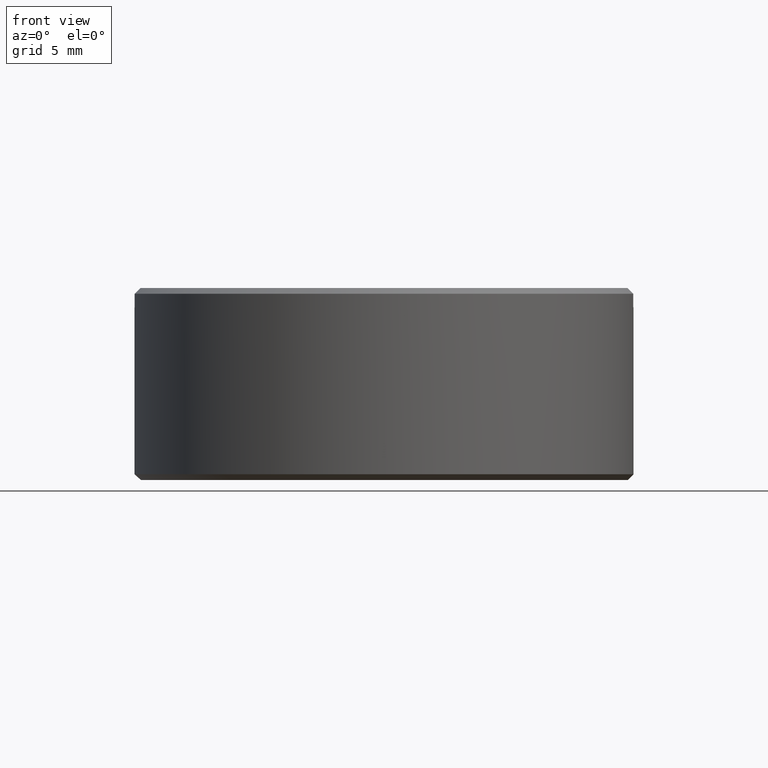
[diagram: clean part render]
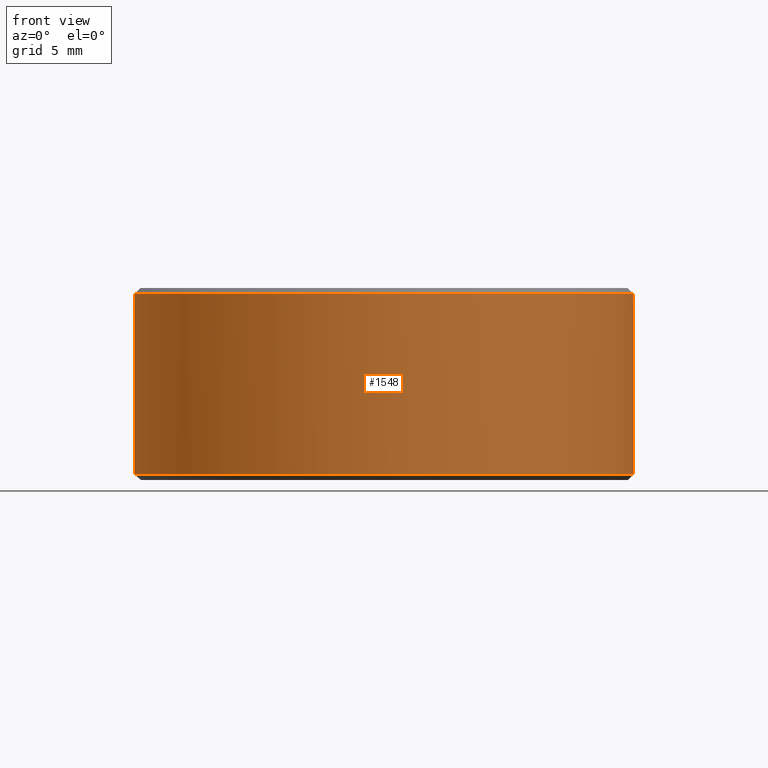
[diagram: same view with one face highlighted and labeled with its STEP entity id]
A machine part, front view. The second image highlights one B-rep face of the part: STEP entity #1548.
In plain terms, the highlighted cylindrical surface (bore or boss wall) has radius 13 mm, axis along (-0, -0, -1).
Its self-contained STEP definition (entity closure, byte-faithful):
#14 = AXIS2_PLACEMENT_3D ( 'NONE', #1216, #521, #1015 ) ;
#28 = DIRECTION ( 'NONE',  ( -1.000000000000000000, 0.000000000000000000, 0.000000000000000000 ) ) ;
#54 = CARTESIAN_POINT ( 'NONE',  ( -12.98836017363239037, -0.5500000000000000444, 4.000000000000000000 ) ) ;
#61 = EDGE_CURVE ( 'NONE', #1201, #1094, #1169, .T. ) ;
#72 = DIRECTION ( 'NONE',  ( -1.000000000000000000, 0.000000000000000000, 0.000000000000000000 ) ) ;
#82 = EDGE_CURVE ( 'NONE', #1471, #1441, #663, .T. ) ;
#117 = EDGE_CURVE ( 'NONE', #890, #1046, #671, .T. ) ;
#124 = EDGE_CURVE ( 'NONE', #934, #934, #562, .T. ) ;
#142 = VECTOR ( 'NONE', #927, 1000.000000000000000 ) ;
#187 = CARTESIAN_POINT ( 'NONE',  ( 12.98836017363239037, -0.5500000000000000444, 4.000000000000000000 ) ) ;
#198 = AXIS2_PLACEMENT_3D ( 'NONE', #285, #1148, #28 ) ;
#224 = DIRECTION ( 'NONE',  ( 0.000000000000000000, 0.000000000000000000, 1.000000000000000000 ) ) ;
#225 = ORIENTED_EDGE ( 'NONE', *, *, #61, .T. ) ;
#236 = CARTESIAN_POINT ( 'NONE',  ( 12.98836017363239037, -0.5500000000000000444, 4.000000000000000000 ) ) ;
#238 = LINE ( 'NONE', #715, #782 ) ;
#245 = EDGE_CURVE ( 'NONE', #890, #1441, #880, .T. ) ;
#256 = ORIENTED_EDGE ( 'NONE', *, *, #117, .T. ) ;
#285 = CARTESIAN_POINT ( 'NONE',  ( 0.000000000000000000, 0.000000000000000000, -4.700000000000000178 ) ) ;
#324 = ORIENTED_EDGE ( 'NONE', *, *, #82, .T. ) ;
#392 = EDGE_CURVE ( 'NONE', #1094, #1471, #825, .T. ) ;
#453 = ORIENTED_EDGE ( 'NONE', *, *, #459, .T. ) ;
#459 = EDGE_CURVE ( 'NONE', #1046, #593, #1313, .T. ) ;
#484 = VECTOR ( 'NONE', #1281, 1000.000000000000000 ) ;
#521 = DIRECTION ( 'NONE',  ( -0.000000000000000000, -0.000000000000000000, -1.000000000000000000 ) ) ;
#543 = VERTEX_POINT ( 'NONE', #811 ) ;
#546 = AXIS2_PLACEMENT_3D ( 'NONE', #901, #1188, #72 ) ;
#562 = CIRCLE ( 'NONE', #198, 13.00000000000000355 ) ;
#564 = CARTESIAN_POINT ( 'NONE',  ( -12.98836017363239037, -0.5500000000000000444, 4.699999999999988631 ) ) ;
#565 = CARTESIAN_POINT ( 'NONE',  ( -12.98836017363239037, 0.5500000000000000444, 4.699999999999988631 ) ) ;
#582 = CARTESIAN_POINT ( 'NONE',  ( 12.98836017363239037, 0.5500000000000000444, 4.699999999999988631 ) ) ;
#586 = DIRECTION ( 'NONE',  ( -1.000000000000000000, 0.000000000000000000, 0.000000000000000000 ) ) ;
#593 = VERTEX_POINT ( 'NONE', #582 ) ;
#606 = AXIS2_PLACEMENT_3D ( 'NONE', #710, #224, #750 ) ;
#631 = EDGE_CURVE ( 'NONE', #593, #543, #238, .T. ) ;
#663 = LINE ( 'NONE', #54, #484 ) ;
#671 = LINE ( 'NONE', #1035, #142 ) ;
#682 = DIRECTION ( 'NONE',  ( -0.000000000000000000, 0.000000000000000000, 1.000000000000000000 ) ) ;
#710 = CARTESIAN_POINT ( 'NONE',  ( 0.000000000000000000, 0.000000000000000000, 4.000000000000000000 ) ) ;
#715 = CARTESIAN_POINT ( 'NONE',  ( 12.98836017363239037, 0.5500000000000000444, 4.000000000000000000 ) ) ;
#750 = DIRECTION ( 'NONE',  ( -1.000000000000000000, 1.687538997430237941E-14, 0.000000000000000000 ) ) ;
#782 = VECTOR ( 'NONE', #1565, 1000.000000000000000 ) ;
#789 = EDGE_CURVE ( 'NONE', #1201, #543, #1401, .T. ) ;
#811 = CARTESIAN_POINT ( 'NONE',  ( 12.98836017363239037, 0.5500000000000000444, 4.000000000000000000 ) ) ;
#820 = ORIENTED_EDGE ( 'NONE', *, *, #124, .T. ) ;
#825 = CIRCLE ( 'NONE', #14, 13.00000000000000355 ) ;
#832 = CARTESIAN_POINT ( 'NONE',  ( 0.000000000000000000, 0.000000000000000000, 5.000000000000000000 ) ) ;
#880 = CIRCLE ( 'NONE', #928, 13.00000000000000355 ) ;
#890 = VERTEX_POINT ( 'NONE', #1249 ) ;
#892 = VECTOR ( 'NONE', #682, 1000.000000000000000 ) ;
#901 = CARTESIAN_POINT ( 'NONE',  ( 0.000000000000000000, 0.000000000000000000, 4.699999999999987743 ) ) ;
#927 = DIRECTION ( 'NONE',  ( 0.000000000000000000, -0.000000000000000000, 1.000000000000000000 ) ) ;
#928 = AXIS2_PLACEMENT_3D ( 'NONE', #1436, #1183, #1069 ) ;
#934 = VERTEX_POINT ( 'NONE', #1097 ) ;
#960 = AXIS2_PLACEMENT_3D ( 'NONE', #832, #1217, #586 ) ;
#966 = ORIENTED_EDGE ( 'NONE', *, *, #631, .T. ) ;
#971 = EDGE_LOOP ( 'NONE', ( #453, #966, #1225, #225, #1059, #324, #1329, #256 ) ) ;
#1015 = DIRECTION ( 'NONE',  ( -1.000000000000000000, 0.000000000000000000, 0.000000000000000000 ) ) ;
#1035 = CARTESIAN_POINT ( 'NONE',  ( -12.98836017363239037, 0.5500000000000000444, 4.000000000000000000 ) ) ;
#1046 = VERTEX_POINT ( 'NONE', #565 ) ;
#1059 = ORIENTED_EDGE ( 'NONE', *, *, #392, .T. ) ;
#1069 = DIRECTION ( 'NONE',  ( -1.000000000000000000, 0.000000000000000000, 0.000000000000000000 ) ) ;
#1070 = FACE_OUTER_BOUND ( 'NONE', #971, .T. ) ;
#1094 = VERTEX_POINT ( 'NONE', #1100 ) ;
#1097 = CARTESIAN_POINT ( 'NONE',  ( -13.00000000000000355, 0.000000000000000000, -4.700000000000000178 ) ) ;
#1100 = CARTESIAN_POINT ( 'NONE',  ( 12.98836017363239037, -0.5500000000000000444, 4.699999999999988631 ) ) ;
#1148 = DIRECTION ( 'NONE',  ( 0.000000000000000000, 0.000000000000000000, 1.000000000000000000 ) ) ;
#1158 = EDGE_LOOP ( 'NONE', ( #820 ) ) ;
#1169 = LINE ( 'NONE', #187, #892 ) ;
#1183 = DIRECTION ( 'NONE',  ( 0.000000000000000000, 0.000000000000000000, 1.000000000000000000 ) ) ;
#1188 = DIRECTION ( 'NONE',  ( -0.000000000000000000, -0.000000000000000000, -1.000000000000000000 ) ) ;
#1191 = CYLINDRICAL_SURFACE ( 'NONE', #960, 13.00000000000000355 ) ;
#1201 = VERTEX_POINT ( 'NONE', #236 ) ;
#1216 = CARTESIAN_POINT ( 'NONE',  ( 0.000000000000000000, 0.000000000000000000, 4.699999999999987743 ) ) ;
#1217 = DIRECTION ( 'NONE',  ( -0.000000000000000000, -0.000000000000000000, -1.000000000000000000 ) ) ;
#1225 = ORIENTED_EDGE ( 'NONE', *, *, #789, .F. ) ;
#1249 = CARTESIAN_POINT ( 'NONE',  ( -12.98836017363239037, 0.5500000000000000444, 4.000000000000000000 ) ) ;
#1281 = DIRECTION ( 'NONE',  ( 0.000000000000000000, -0.000000000000000000, -1.000000000000000000 ) ) ;
#1291 = CARTESIAN_POINT ( 'NONE',  ( -12.98836017363239037, -0.5500000000000000444, 4.000000000000000000 ) ) ;
#1313 = CIRCLE ( 'NONE', #546, 13.00000000000000355 ) ;
#1329 = ORIENTED_EDGE ( 'NONE', *, *, #245, .F. ) ;
#1401 = CIRCLE ( 'NONE', #606, 13.00000000000000355 ) ;
#1436 = CARTESIAN_POINT ( 'NONE',  ( 0.000000000000000000, 0.000000000000000000, 4.000000000000000000 ) ) ;
#1441 = VERTEX_POINT ( 'NONE', #1291 ) ;
#1463 = FACE_OUTER_BOUND ( 'NONE', #1158, .T. ) ;
#1471 = VERTEX_POINT ( 'NONE', #564 ) ;
#1548 = ADVANCED_FACE ( 'NONE', ( #1463, #1070 ), #1191, .T. ) ;
#1565 = DIRECTION ( 'NONE',  ( -0.000000000000000000, 0.000000000000000000, -1.000000000000000000 ) ) ;